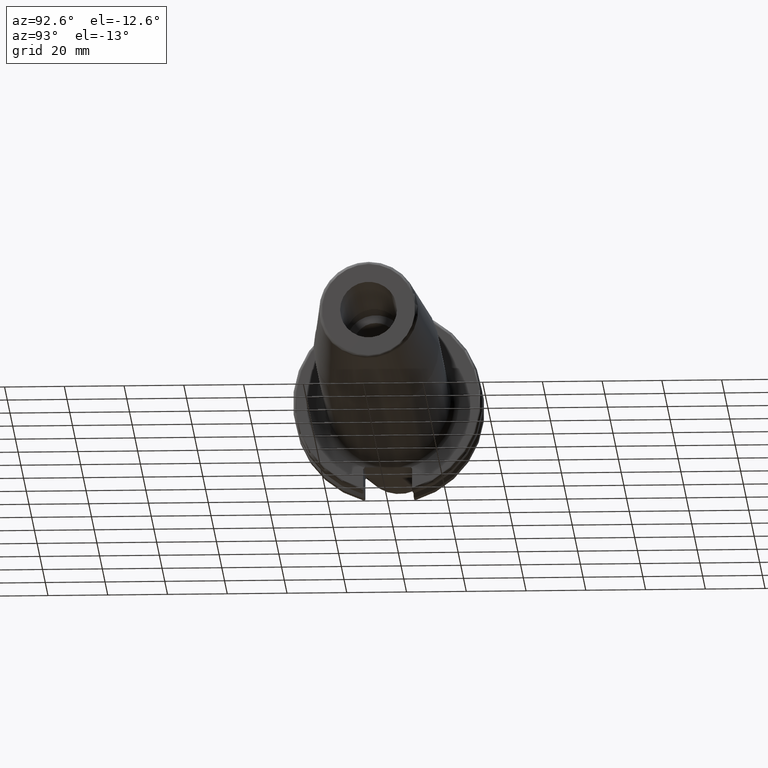
[diagram: clean part render]
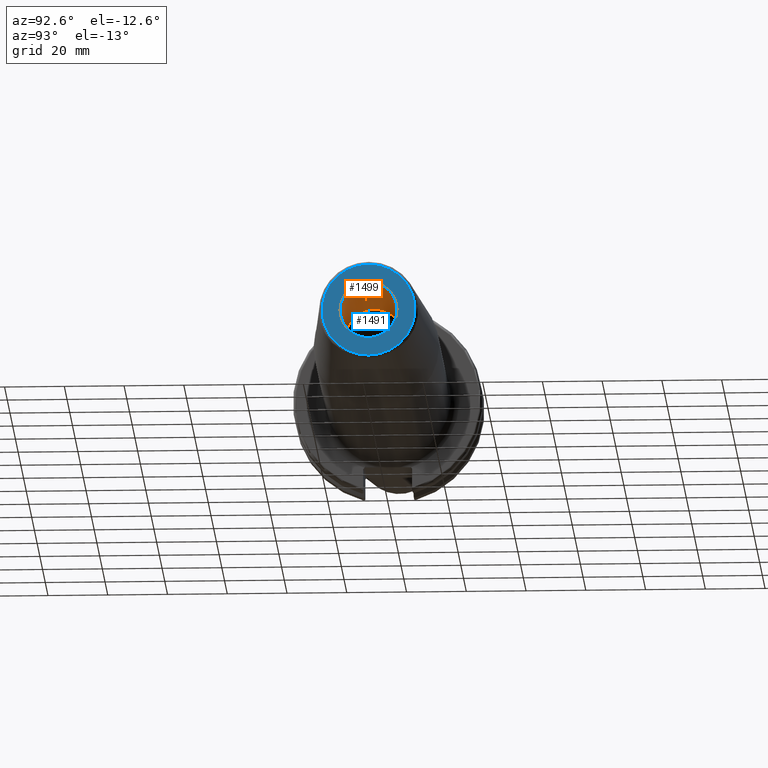
[diagram: same view with the hole feature highlighted: cylindrical wall and planar end face, labeled with their STEP entity ids]
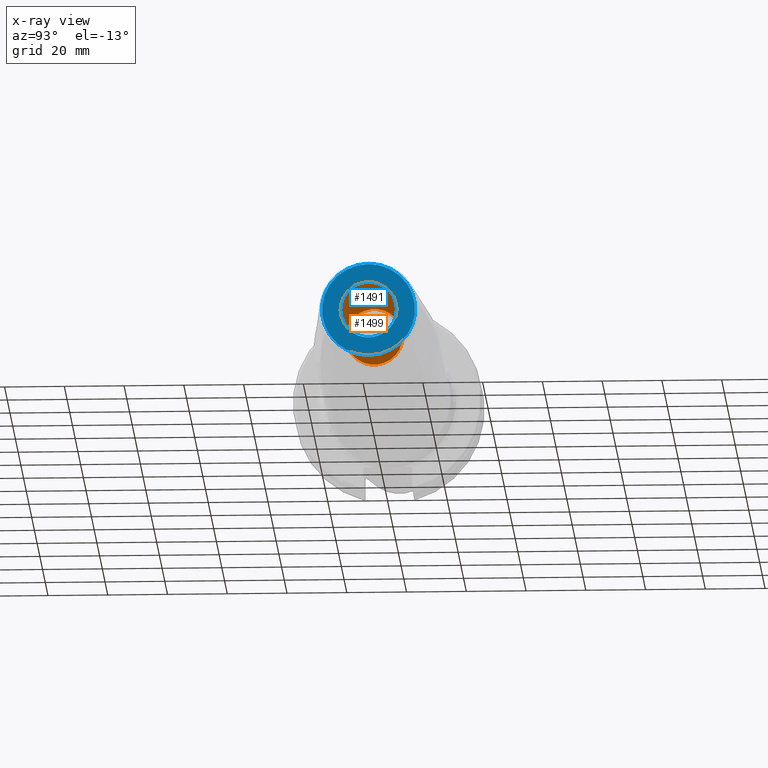
[diagram: x-ray of the same camera — body ghosted, the hole faces saturated]
A machine part, auxiliary view. The highlighted faces form one hole feature of diameter 19.05 mm: the cylindrical wall (entity #1499, orange) and its adjacent planar end face (entity #1491, blue) — they share a circular edge in the B-rep.
The next image is the same camera in x-ray (body ghosted, the hole faces saturated) — the bore reads through the body.
Wall:
#53=CYLINDRICAL_SURFACE('',#1626,9.52500000000001);
#170=LINE('',#2383,#263);
#263=VECTOR('',#1841,9.52500000000001);
#373=FACE_OUTER_BOUND('',#464,.T.);
#464=EDGE_LOOP('',(#1063,#1064,#1065,#1066));
#557=CIRCLE('',#1607,9.52500000000002);
#569=CIRCLE('',#1627,9.52500000000001);
#629=VERTEX_POINT('',#2242);
#648=VERTEX_POINT('',#2382);
#785=EDGE_CURVE('',#629,#629,#557,.T.);
#810=EDGE_CURVE('',#629,#648,#170,.T.);
#811=EDGE_CURVE('',#648,#648,#569,.T.);
#1063=ORIENTED_EDGE('',*,*,#785,.T.);
#1064=ORIENTED_EDGE('',*,*,#810,.T.);
#1065=ORIENTED_EDGE('',*,*,#811,.F.);
#1066=ORIENTED_EDGE('',*,*,#810,.F.);
#1499=ADVANCED_FACE('',(#373),#53,.F.);
#1607=AXIS2_PLACEMENT_3D('',#2243,#1796,#1797);
#1626=AXIS2_PLACEMENT_3D('',#2381,#1839,#1840);
#1627=AXIS2_PLACEMENT_3D('',#2384,#1842,#1843);
#1796=DIRECTION('center_axis',(1.,0.,0.));
#1797=DIRECTION('ref_axis',(0.,0.,-1.));
#1839=DIRECTION('center_axis',(1.,0.,0.));
#1840=DIRECTION('ref_axis',(0.,1.,0.));
#1841=DIRECTION('',(-1.,0.,0.));
#1842=DIRECTION('center_axis',(1.,0.,0.));
#1843=DIRECTION('ref_axis',(0.,0.,-1.));
#2242=CARTESIAN_POINT('',(160.,-9.52500000000001,-1.16647607618786E-15));
#2243=CARTESIAN_POINT('Origin',(160.,0.,0.));
#2381=CARTESIAN_POINT('Origin',(139.,0.,0.));
#2382=CARTESIAN_POINT('',(118.,-9.52500000000001,-1.16647607618786E-15));
#2383=CARTESIAN_POINT('',(139.,-9.52500000000001,-1.16647607618786E-15));
#2384=CARTESIAN_POINT('Origin',(118.,0.,0.));
End face:
#112=FACE_BOUND('',#453,.T.);
#127=PLANE('',#1606);
#365=FACE_OUTER_BOUND('',#452,.T.);
#452=EDGE_LOOP('',(#1023));
#453=EDGE_LOOP('',(#1024));
#552=CIRCLE('',#1600,15.5756095083418);
#557=CIRCLE('',#1607,9.52500000000002);
#625=VERTEX_POINT('',#2230);
#629=VERTEX_POINT('',#2242);
#779=EDGE_CURVE('',#625,#625,#552,.T.);
#785=EDGE_CURVE('',#629,#629,#557,.T.);
#1023=ORIENTED_EDGE('',*,*,#779,.F.);
#1024=ORIENTED_EDGE('',*,*,#785,.F.);
#1491=ADVANCED_FACE('',(#365,#112),#127,.T.);
#1600=AXIS2_PLACEMENT_3D('',#2231,#1781,#1782);
#1606=AXIS2_PLACEMENT_3D('',#2241,#1794,#1795);
#1607=AXIS2_PLACEMENT_3D('',#2243,#1796,#1797);
#1781=DIRECTION('center_axis',(-1.,0.,0.));
#1782=DIRECTION('ref_axis',(0.,-1.,1.83697019872103E-16));
#1794=DIRECTION('center_axis',(1.,0.,0.));
#1795=DIRECTION('ref_axis',(0.,0.,-1.));
#1796=DIRECTION('center_axis',(1.,0.,0.));
#1797=DIRECTION('ref_axis',(0.,0.,-1.));
#2230=CARTESIAN_POINT('',(160.,-1.90746203291599E-15,15.5756095083418));
#2231=CARTESIAN_POINT('Origin',(160.,0.,0.));
#2241=CARTESIAN_POINT('Origin',(160.,9.52500000000002,0.));
#2242=CARTESIAN_POINT('',(160.,-9.52500000000001,-1.16647607618786E-15));
#2243=CARTESIAN_POINT('Origin',(160.,0.,0.));